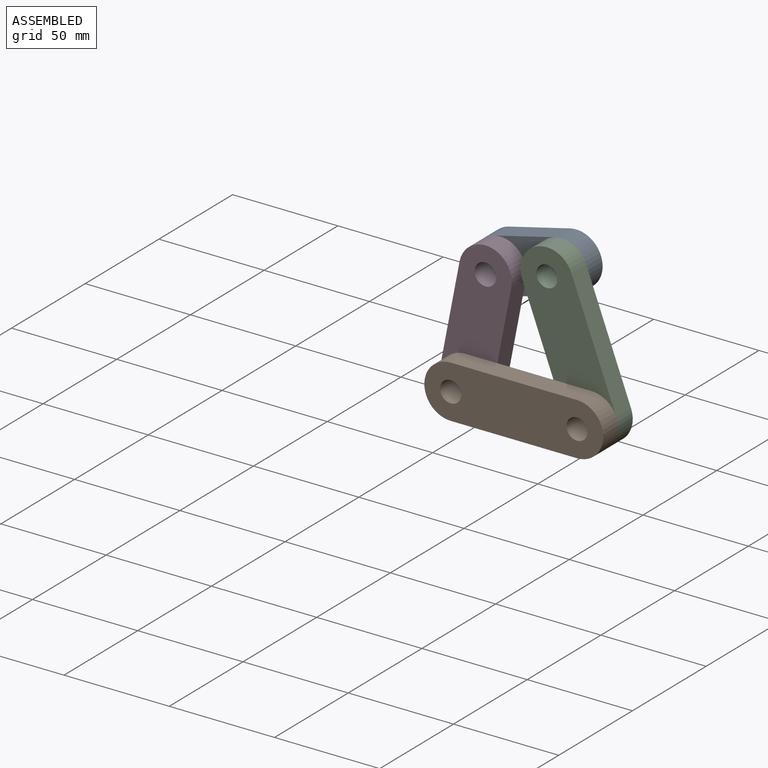
[diagram: assembled view]
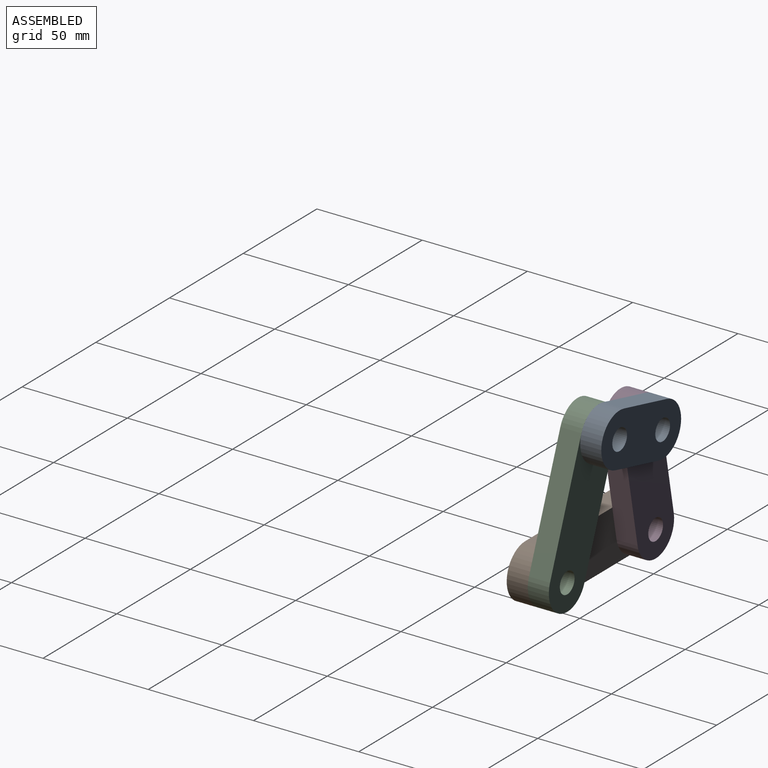
[diagram: assembled view, second angle]
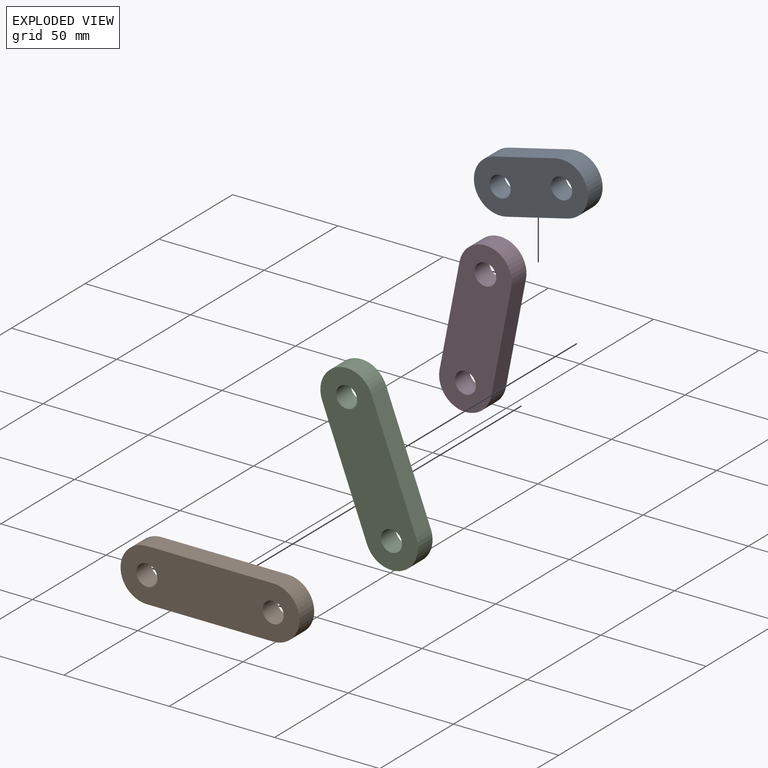
[diagram: exploded view]
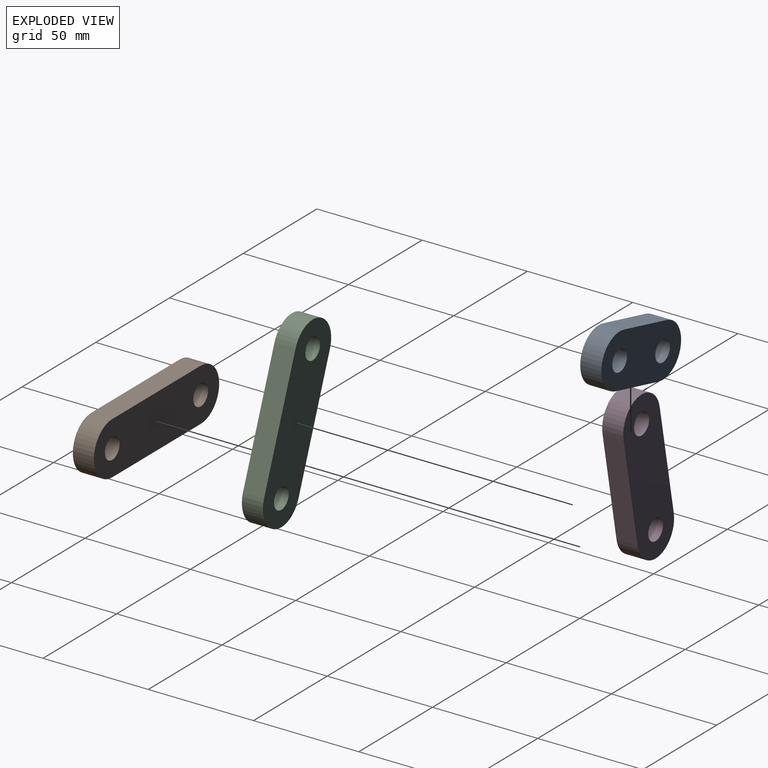
[diagram: exploded view, second angle]
ASSEMBLY  parts=4 mates=8
PART A: 8 faces, bbox 55x10x25 mm
  f0: cylinder r=12.5mm len=25mm, axis (0,1,0), area 392.7mm2, adj f1,f5,f6,f7
  f1: plane 30x10mm, normal (0,0,-1), area 300mm2, adj f0,f2,f6,f7
  f2: cylinder r=12.5mm len=25mm, axis (0,1,0), area 392.7mm2, adj f1,f5,f6,f7
  f3: cylinder r=5mm len=10mm, axis (0,1,0), area 314.2mm2, adj f6,f7
  f4: cylinder r=5mm len=10mm, axis (0,1,0), area 314.2mm2, adj f6,f7
  f5: plane 30x10mm, normal (0,0,1), area 300mm2, adj f0,f2,f6,f7
  f6: plane 55x25mm, normal (0,-1,0), area 1083.8mm2, adj f0,f1,f2,f3,f4,f5
  f7: plane 55x25mm, normal (0,1,0), area 1083.8mm2, adj f0,f1,f2,f3,f4,f5
PART B: 8 faces, bbox 85x10x25 mm
  f0: cylinder r=12.5mm len=25mm, axis (0,1,0), area 392.7mm2, adj f1,f5,f6,f7
  f1: plane 60x10mm, normal (0,0,-1), area 600mm2, adj f0,f2,f6,f7
  f2: cylinder r=12.5mm len=25mm, axis (0,1,0), area 392.7mm2, adj f1,f5,f6,f7
  f3: cylinder r=5mm len=10mm, axis (0,1,0), area 314.2mm2, adj f6,f7
  f4: cylinder r=5mm len=10mm, axis (0,1,0), area 314.2mm2, adj f6,f7
  f5: plane 60x10mm, normal (0,0,1), area 600mm2, adj f0,f2,f6,f7
  f6: plane 85x25mm, normal (0,-1,0), area 1833.8mm2, adj f0,f1,f2,f3,f4,f5
  f7: plane 85x25mm, normal (0,1,0), area 1833.8mm2, adj f0,f1,f2,f3,f4,f5
PART C: same geometry as B
PART D: 8 faces, bbox 75x10x25 mm
  f0: cylinder r=12.5mm len=25mm, axis (0,1,0), area 392.7mm2, adj f1,f5,f6,f7
  f1: plane 50x10mm, normal (0,0,-1), area 500mm2, adj f0,f2,f6,f7
  f2: cylinder r=12.5mm len=25mm, axis (0,1,0), area 392.7mm2, adj f1,f5,f6,f7
  f3: cylinder r=5mm len=10mm, axis (0,1,0), area 314.2mm2, adj f6,f7
  f4: cylinder r=5.12mm len=10.23mm, axis (0,1,0), area 321.5mm2, adj f6,f7
  f5: plane 50x10mm, normal (0,0,1), area 500mm2, adj f0,f2,f6,f7
  f6: plane 75x25mm, normal (0,-1,0), area 1580.1mm2, adj f0,f1,f2,f3,f4,f5
  f7: plane 75x25mm, normal (0,1,0), area 1580.1mm2, adj f0,f1,f2,f3,f4,f5
PLACE A rot(axis=(0,-1,0),13.5deg) t=(-136.15,-45.14,19.49)mm
PLACE B t=(-133.71,-65.14,-33.25)mm fixed
PLACE C rot(axis=(0,-1,0),110.8deg) t=(-104.56,-55.14,-5.29)mm
PLACE D rot(axis=(0,-1,0),79deg) t=(-155.55,-55.14,-5.66)mm
MATE planar C.f0 <-> B.f2  axis (0,-1,0) through (-98.78,-65.14,-29.91)mm
MATE planar B.f0 <-> D.f0  axis (0,1,0) through (-158.78,-65.14,-29.91)mm
MATE cylindrical A.f0 <-> D.f2  axis (0,-1,0) through (-149.26,-55.14,19.17)mm
MATE planar C.f2 <-> A.f2  axis (0,1,0) through (-120.09,-55.14,26.18)mm
MATE cylindrical C.f2 <-> A.f2  axis (0,1,0) through (-120.09,-55.14,26.18)mm
MATE planar A.f0 <-> D.f2  axis (0,-1,0) through (-149.26,-55.14,19.17)mm
MATE cylindrical D.f0 <-> B.f0  axis (0,1,0) through (-158.78,-65.14,-29.91)mm
MATE cylindrical C.f0 <-> B.f2  axis (0,-1,0) through (-98.78,-65.14,-29.91)mm
